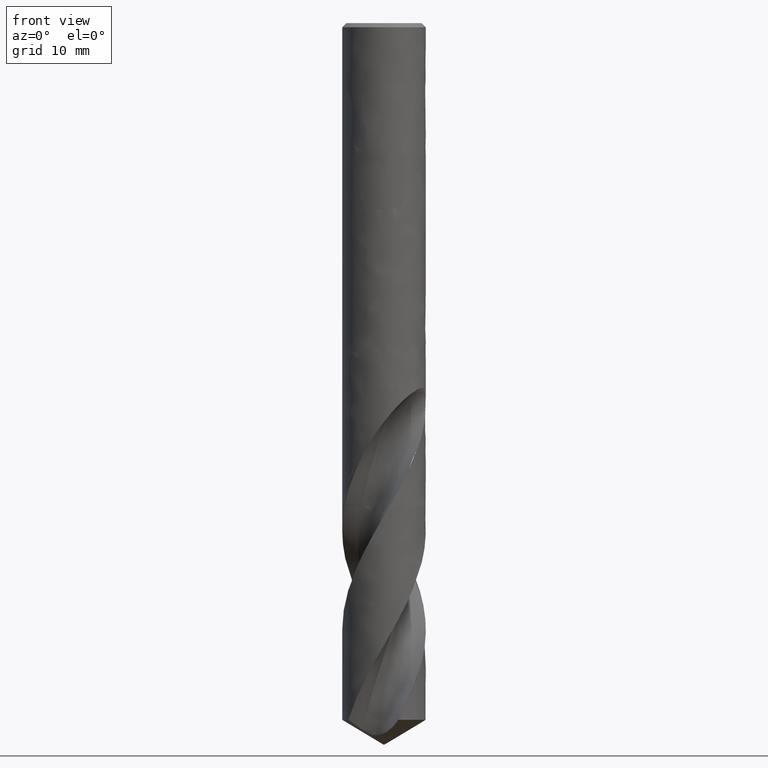
[diagram: clean part render]
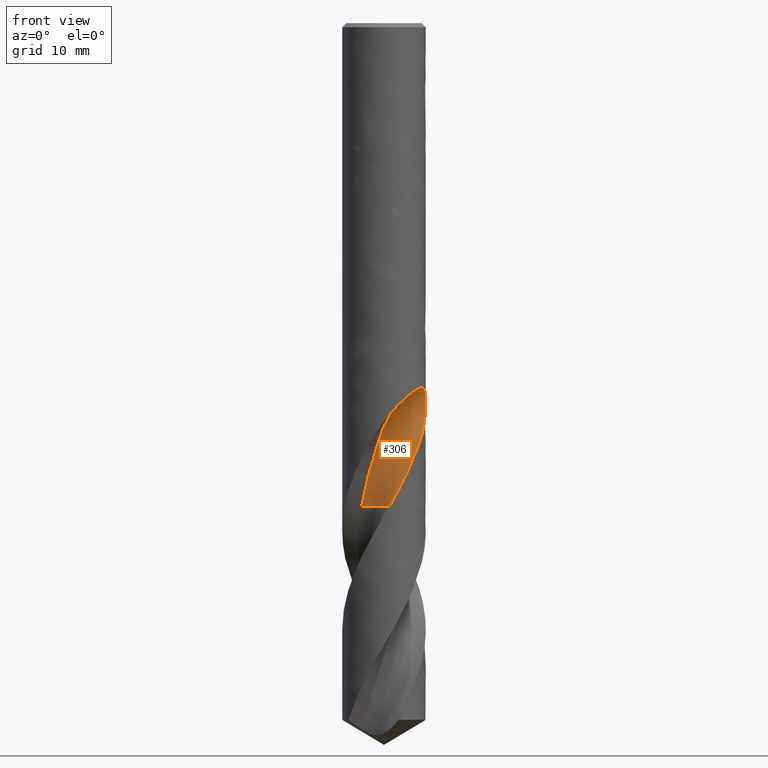
[diagram: same view with one face highlighted and labeled with its STEP entity id]
A machine part, front view. The second image highlights one B-rep face of the part: STEP entity #306.
In plain terms, the highlighted face is a freeform B-spline surface patch.
Its self-contained STEP definition (entity closure, byte-faithful):
#131 = VERTEX_POINT('', #132);
#132 = CARTESIAN_POINT('', (-2.94247372623599, -1.49485175941623, -63.6));
#138 = EDGE_CURVE('', #131, #139, #141, .T.);
#139 = VERTEX_POINT('', #140);
#140 = CARTESIAN_POINT('', (1.00198090854297, -5.40796026787507, -51.2463945700336));
#141 = B_SPLINE_CURVE_WITH_KNOTS('', 3, (#142, #143, #144, #145, #146, #147, #148, #149, #150, #151, #152, #153, #154, #155, #156, #157), .UNSPECIFIED., .F., .U., (4, 1, 1, 1, 1, 1, 1, 1, 1, 1, 1, 1, 1, 4), (31.45, 31.7076086956522, 32.7304347826087, 33.7532608695652, 34.7760869565217, 35.7989130434783, 36.8217391304348, 37.8445652173913, 38.8673913043478, 39.8902173913044, 40.9130434782609, 41.9358695652174, 42.9586956521739, 43.8036054299664), .UNSPECIFIED.);
#142 = CARTESIAN_POINT('', (-2.94247372623599, -1.49485175941623, -63.6));
#143 = CARTESIAN_POINT('', (-2.92979356234915, -1.52144610165644, -63.5141304347826));
#144 = CARTESIAN_POINT('', (-2.8649756753552, -1.65282388224739, -63.0873188405797));
#145 = CARTESIAN_POINT('', (-2.73240932305411, -1.88140311255326, -62.3195652173913));
#146 = CARTESIAN_POINT('', (-2.52707689249013, -2.16912555194927, -61.2967391304348));
#147 = CARTESIAN_POINT('', (-2.2815081506607, -2.42509952900524, -60.2739130434783));
#148 = CARTESIAN_POINT('', (-1.99506502155739, -2.63293704556522, -59.2510869565217));
#149 = CARTESIAN_POINT('', (-1.67933541228516, -2.79157488667388, -58.2282608695652));
#150 = CARTESIAN_POINT('', (-1.34276176188314, -2.88255019695271, -57.2054347826087));
#151 = CARTESIAN_POINT('', (-1.05916568438463, -3.07780527698942, -56.1826086956522));
#152 = CARTESIAN_POINT('', (-0.776234863210597, -3.37141145762359, -55.1597826086956));
#153 = CARTESIAN_POINT('', (-0.458797629931382, -3.77217049912973, -54.1369565217391));
#154 = CARTESIAN_POINT('', (-0.0658591406220405, -4.27395049911726, -53.1141304347826));
#155 = CARTESIAN_POINT('', (0.411841204599818, -4.82931074111829, -52.1506097842141));
#156 = CARTESIAN_POINT('', (0.804278153033331, -5.22456242433116, -51.5280311626311));
#157 = CARTESIAN_POINT('', (1.00198090854297, -5.40796026787507, -51.2463945700336));
#306 = ADVANCED_FACE('', (#307), #649, .T.);
#307 = FACE_OUTER_BOUND('', #308, .T.);
#308 = EDGE_LOOP('', (#309, #384, #429, #441, #576, #584, #648));
#309 = ORIENTED_EDGE('', *, *, #310, .T.);
#310 = EDGE_CURVE('', #131, #311, #313, .T.);
#311 = VERTEX_POINT('', #312);
#312 = CARTESIAN_POINT('', (0.714456293765341, -5.45339822535445, -63.6));
#313 = B_SPLINE_CURVE_WITH_KNOTS('', 3, (#314, #315, #316, #317, #318, #319, #320, #321, #322, #323, #324, #325, #326, #327, #328, #329, #330, #331, #332, #333, #334, #335, #336, #337, #338, #339, #340, #341, #342, #343, #344, #345, #346, #347, #348, #349, #350, #351, #352, #353, #354, #355, #356, #357, #358, #359, #360, #361, #362, #363, #364, #365, #366, #367, #368, #369, #370, #371, #372, #373, #374, #375, #376, #377, #378, #379, #380, #381, #382, #383), .UNSPECIFIED., .F., .U., (4, 3, 3, 3, 3, 3, 3, 3, 3, 3, 3, 3, 3, 3, 3, 3, 3, 3, 3, 3, 3, 3, 3, 4), (0., 0.297207822818698, 0.594099062556648, 0.890680923475543, 1.18695915059316, 1.4829381332927, 1.77862098314817, 2.07400958893483, 2.36910465088771, 2.66390569549937, 2.95841107145926, 3.15485063121478, 3.19376106299035, 3.49094778241057, 3.78781844060555, 4.08438014197337, 4.38063853935954, 4.67659793585614, 4.97226136104411, 5.26763062458236, 5.56270634915278, 5.85748798400461, 6.15197379965707, 6.29654215891658), .UNSPECIFIED.);
#314 = CARTESIAN_POINT('', (-2.94247372623599, -1.49485175941623, -63.6));
#315 = CARTESIAN_POINT('', (-2.84420379591717, -1.48229222518546, -63.6));
#316 = CARTESIAN_POINT('', (-2.74526944946921, -1.47414386021349, -63.6));
#317 = CARTESIAN_POINT('', (-2.64626884204198, -1.47045592935774, -63.6));
#318 = CARTESIAN_POINT('', (-2.54737368916502, -1.46677192685253, -63.6));
#319 = CARTESIAN_POINT('', (-2.44821342986921, -1.46753142941059, -63.6));
#320 = CARTESIAN_POINT('', (-2.34938631056536, -1.47272985485674, -63.6));
#321 = CARTESIAN_POINT('', (-2.25066217516057, -1.47792286322582, -63.6));
#322 = CARTESIAN_POINT('', (-2.15207225713865, -1.48755595647283, -63.6));
#323 = CARTESIAN_POINT('', (-2.05421012483209, -1.5015711378045, -63.6));
#324 = CARTESIAN_POINT('', (-1.9564481815632, -1.51557197071051, -63.6));
#325 = CARTESIAN_POINT('', (-1.8592166392032, -1.53397396020159, -63.6));
#326 = CARTESIAN_POINT('', (-1.7630996916715, -1.55666654205029, -63.6));
#327 = CARTESIAN_POINT('', (-1.66707982336262, -1.57933620413026, -63.6));
#328 = CARTESIAN_POINT('', (-1.57198028251203, -1.60633311142021, -63.6));
#329 = CARTESIAN_POINT('', (-1.47837130148837, -1.63749538605774, -63.6));
#330 = CARTESIAN_POINT('', (-1.38485597810732, -1.66862648222126, -63.6));
#331 = CARTESIAN_POINT('', (-1.29264159763866, -1.70397672695759, -63.6));
#332 = CARTESIAN_POINT('', (-1.20227998832609, -1.7433345777354, -63.6));
#333 = CARTESIAN_POINT('', (-1.11200830092682, -1.78265326217619, -63.6));
#334 = CARTESIAN_POINT('', (-1.02340589357005, -1.82604987729375, -63.6));
#335 = CARTESIAN_POINT('', (-0.937001926603489, -1.87326524539045, -63.6));
#336 = CARTESIAN_POINT('', (-0.850683823990601, -1.92043369299025, -63.6));
#337 = CARTESIAN_POINT('', (-0.76638820340437, -1.97150705351481, -63.6));
#338 = CARTESIAN_POINT('', (-0.684617505157917, -2.02618090646072, -63.6));
#339 = CARTESIAN_POINT('', (-0.602928278973817, -2.08080028522881, -63.6));
#340 = CARTESIAN_POINT('', (-0.523596877790301, -2.13912132726374, -63.6));
#341 = CARTESIAN_POINT('', (-0.447095212531325, -2.20079710390395, -63.6));
#342 = CARTESIAN_POINT('', (-0.370670274084002, -2.2624110232541, -63.6));
#343 = CARTESIAN_POINT('', (-0.296918075111338, -2.3274949260005, -63.6));
#344 = CARTESIAN_POINT('', (-0.226276459803447, -2.3956624289697, -63.6));
#345 = CARTESIAN_POINT('', (-0.179157429238141, -2.44113118901952, -63.6));
#346 = CARTESIAN_POINT('', (-0.133368982838147, -2.4880203718166, -63.6));
#347 = CARTESIAN_POINT('', (-0.0890321608590752, -2.53620602734476, -63.6));
#348 = CARTESIAN_POINT('', (-0.0802499945331596, -2.54575056442437, -63.6));
#349 = CARTESIAN_POINT('', (-0.0715238168780199, -2.55534692293956, -63.6));
#350 = CARTESIAN_POINT('', (-0.0628545335177949, -2.56499410695669, -63.6));
#351 = CARTESIAN_POINT('', (0.00335896666666497, -2.63867653192255, -63.6));
#352 = CARTESIAN_POINT('', (0.0663224471391343, -2.71541371885908, -63.6));
#353 = CARTESIAN_POINT('', (0.125655285888055, -2.79474178199895, -63.6));
#354 = CARTESIAN_POINT('', (0.184925023534246, -2.87398547890307, -63.6));
#355 = CARTESIAN_POINT('', (0.240691093283978, -2.95597395694635, -63.6));
#356 = CARTESIAN_POINT('', (0.292617097946261, -3.04021263772598, -63.6));
#357 = CARTESIAN_POINT('', (0.344489062597499, -3.12436365030797, -63.6));
#358 = CARTESIAN_POINT('', (0.392633105871104, -3.21092911802732, -63.6));
#359 = CARTESIAN_POINT('', (0.436759412123278, -3.29938793744004, -63.6));
#360 = CARTESIAN_POINT('', (0.480840588865064, -3.387756286937, -63.6));
#361 = CARTESIAN_POINT('', (0.521000575666708, -3.47819115560836, -63.6));
#362 = CARTESIAN_POINT('', (0.556998112502401, -3.57014925844612, -63.6));
#363 = CARTESIAN_POINT('', (0.592959318568635, -3.66201455191614, -63.6));
#364 = CARTESIAN_POINT('', (0.624838391865865, -3.7555836804739, -63.6));
#365 = CARTESIAN_POINT('', (0.652444205527418, -3.85029566249389, -63.6));
#366 = CARTESIAN_POINT('', (0.680022412264196, -3.94491292871977, -63.6));
#367 = CARTESIAN_POINT('', (0.703390949965795, -4.04085956332601, -63.6));
#368 = CARTESIAN_POINT('', (0.722409995240997, -4.1375614788794, -63.6));
#369 = CARTESIAN_POINT('', (0.741410118075148, -4.23416718369928, -63.6));
#370 = CARTESIAN_POINT('', (0.756107254633792, -4.33171905299035, -63.6));
#371 = CARTESIAN_POINT('', (0.766413640654389, -4.42963455369709, -63.6));
#372 = CARTESIAN_POINT('', (0.776709784153884, -4.52745274564982, -63.6));
#373 = CARTESIAN_POINT('', (0.782644381114748, -4.62582826196331, -63.6));
#374 = CARTESIAN_POINT('', (0.784182063263498, -4.72417481646051, -63.6));
#375 = CARTESIAN_POINT('', (0.785718212868319, -4.82242335303171, -63.6));
#376 = CARTESIAN_POINT('', (0.782869272191484, -4.92083786951823, -63.6));
#377 = CARTESIAN_POINT('', (0.77565218621871, -5.0188330141125, -63.6));
#378 = CARTESIAN_POINT('', (0.768442342734415, -5.11672981864149, -63.6));
#379 = CARTESIAN_POINT('', (0.756858861232031, -5.2144018921438, -63.6));
#380 = CARTESIAN_POINT('', (0.740970500168417, -5.3112694623764, -63.6));
#381 = CARTESIAN_POINT('', (0.733170619263457, -5.35882348688163, -63.6));
#382 = CARTESIAN_POINT('', (0.724326816075293, -5.40623048025141, -63.6));
#383 = CARTESIAN_POINT('', (0.714456293765342, -5.45339822535445, -63.6));
#384 = ORIENTED_EDGE('', *, *, #385, .F.);
#385 = EDGE_CURVE('', #386, #311, #388, .T.);
#386 = VERTEX_POINT('', #387);
#387 = CARTESIAN_POINT('', (3.26968593350629, -4.42257322112716, -58.6984018721668));
#388 = B_SPLINE_CURVE_WITH_KNOTS('', 3, (#389, #390, #391, #392, #393, #394, #395, #396, #397, #398, #399, #400, #401, #402, #403, #404, #405, #406, #407, #408, #409, #410, #411, #412, #413, #414, #415, #416, #417, #418, #419, #420, #421, #422, #423, #424, #425, #426, #427, #428), .UNSPECIFIED., .F., .U., (4, 3, 3, 3, 3, 3, 3, 3, 3, 3, 3, 3, 3, 4), (0., 0.443317857167582, 0.738840661161417, 1.40347792133523, 1.84666160747555, 2.28983893802883, 2.73298901117867, 3.02845590968989, 3.47155646753723, 3.91465925584381, 4.21010987210681, 4.87443788406549, 5.31745490321451, 5.63758894589785), .UNSPECIFIED.);
#389 = CARTESIAN_POINT('', (3.2696859335063, -4.42257322112715, -58.6984018721668));
#390 = CARTESIAN_POINT('', (3.21297887948116, -4.46449774054287, -58.8282609944424));
#391 = CARTESIAN_POINT('', (3.15513228414397, -4.50557525465096, -58.9579036059473));
#392 = CARTESIAN_POINT('', (3.0962944852117, -4.54565291909182, -59.0873973941087));
#393 = CARTESIAN_POINT('', (3.05707226341269, -4.57236933392058, -59.173720033178));
#394 = CARTESIAN_POINT('', (3.01741126853386, -4.59864107780535, -59.2599832005708));
#395 = CARTESIAN_POINT('', (2.9773468083574, -4.62443574750087, -59.3461993334353));
#396 = CARTESIAN_POINT('', (2.88724095973199, -4.68244852472763, -59.5401013049767));
#397 = CARTESIAN_POINT('', (2.79505652395099, -4.73807475248177, -59.7337785171634));
#398 = CARTESIAN_POINT('', (2.70085702004125, -4.7911764064052, -59.9271413591457));
#399 = CARTESIAN_POINT('', (2.63804428612322, -4.82658487375441, -60.0560767381972));
#400 = CARTESIAN_POINT('', (2.57432631663658, -4.8608762020052, -60.1848863160772));
#401 = CARTESIAN_POINT('', (2.50970895255338, -4.89401276801294, -60.3135334898728));
#402 = CARTESIAN_POINT('', (2.44509251513173, -4.92714885881743, -60.4421788187712));
#403 = CARTESIAN_POINT('', (2.37957461866043, -4.95912991058116, -60.5706773707301));
#404 = CARTESIAN_POINT('', (2.31324698963694, -4.98987859220401, -60.6990443032043));
#405 = CARTESIAN_POINT('', (2.24692344006161, -5.02062538264433, -60.8274033405335));
#406 = CARTESIAN_POINT('', (2.17978357721891, -5.0501428334012, -60.9556436187666));
#407 = CARTESIAN_POINT('', (2.11193815760748, -5.07835772848286, -61.0837886130037));
#408 = CARTESIAN_POINT('', (2.06670274656874, -5.09716979249165, -61.1692283010485));
#409 = CARTESIAN_POINT('', (2.02115196427779, -5.1154038118853, -61.2546308384422));
#410 = CARTESIAN_POINT('', (1.9753221038498, -5.13304028681271, -61.3400044590906));
#411 = CARTESIAN_POINT('', (1.90659279161879, -5.1594890427247, -61.4680360562858));
#412 = CARTESIAN_POINT('', (1.83722344849559, -5.18459844894434, -61.5960094145514));
#413 = CARTESIAN_POINT('', (1.76730748858407, -5.20832259377188, -61.7239323148908));
#414 = CARTESIAN_POINT('', (1.69739117673279, -5.23204685802093, -61.8518558591627));
#415 = CARTESIAN_POINT('', (1.62692108313725, -5.25438781455223, -61.979741946621));
#416 = CARTESIAN_POINT('', (1.55602527386245, -5.27529955046168, -62.1076170735404));
#417 = CARTESIAN_POINT('', (1.50875359989995, -5.28924300878473, -62.1928812290593));
#418 = CARTESIAN_POINT('', (1.46129150016214, -5.30255165473636, -62.2781461935563));
#419 = CARTESIAN_POINT('', (1.41368305783166, -5.31521403256724, -62.3634228481114));
#420 = CARTESIAN_POINT('', (1.30663429873311, -5.34368570203761, -62.5551695132686));
#421 = CARTESIAN_POINT('', (1.19881517039771, -5.36889917547295, -62.746998916276));
#422 = CARTESIAN_POINT('', (1.0903936142929, -5.39082941354196, -62.9388339683805));
#423 = CARTESIAN_POINT('', (1.01809108642654, -5.40545391909294, -63.0667620271433));
#424 = CARTESIAN_POINT('', (0.945510593224317, -5.41862061771148, -63.1947082377305));
#425 = CARTESIAN_POINT('', (0.872690757580928, -5.43032327229538, -63.3226435312576));
#426 = CARTESIAN_POINT('', (0.820069509718185, -5.43877987319361, -63.4150924461941));
#427 = CARTESIAN_POINT('', (0.767309871499141, -5.44647381424426, -63.5075561600223));
#428 = CARTESIAN_POINT('', (0.714456293765341, -5.45339822535445, -63.6));
#429 = ORIENTED_EDGE('', *, *, #430, .T.);
#430 = EDGE_CURVE('', #386, #431, #433, .T.);
#431 = VERTEX_POINT('', #432);
#432 = CARTESIAN_POINT('', (4.30389661225973, -3.42439395382296, -56.1760126312081));
#433 = B_SPLINE_CURVE_WITH_KNOTS('', 3, (#434, #435, #436, #437, #438, #439, #440), .UNSPECIFIED., .F., .U., (4, 1, 1, 1, 4), (36.3515981278332, 36.8217391304348, 37.8445652173913, 38.8673913043478, 38.8739873687919), .UNSPECIFIED.);
#434 = CARTESIAN_POINT('', (3.2696859335063, -4.42257322112715, -58.6984018721668));
#435 = CARTESIAN_POINT('', (3.3343777346951, -4.35932626646409, -58.5416882046329));
#436 = CARTESIAN_POINT('', (3.53089699525729, -4.15036266013409, -58.0440325081136));
#437 = CARTESIAN_POINT('', (3.80499629325594, -3.75560263517232, -57.2054347826087));
#438 = CARTESIAN_POINT('', (4.11899034126216, -3.52910752632087, -56.5213520364897));
#439 = CARTESIAN_POINT('', (4.30271828965787, -3.42506025057913, -56.1782113193561));
#440 = CARTESIAN_POINT('', (4.30389661225973, -3.42439395382296, -56.1760126312081));
#441 = ORIENTED_EDGE('', *, *, #442, .F.);
#442 = EDGE_CURVE('', #443, #431, #445, .T.);
#443 = VERTEX_POINT('', #444);
#444 = CARTESIAN_POINT('', (4.98766822671617, -2.31800898622199, -48.));
#445 = B_SPLINE_CURVE_WITH_KNOTS('', 3, (#446, #447, #448, #449, #450, #451, #452, #453, #454, #455, #456, #457, #458, #459, #460, #461, #462, #463, #464, #465, #466, #467, #468, #469, #470, #471, #472, #473, #474, #475, #476, #477, #478, #479, #480, #481, #482, #483, #484, #485, #486, #487, #488, #489, #490, #491, #492, #493, #494, #495, #496, #497, #498, #499, #500, #501, #502, #503, #504, #505, #506, #507, #508, #509, #510, #511, #512, #513, #514, #515, #516, #517, #518, #519, #520, #521, #522, #523, #524, #525, #526, #527, #528, #529, #530, #531, #532, #533, #534, #535, #536, #537, #538, #539, #540, #541, #542, #543, #544, #545, #546, #547, #548, #549, #550, #551, #552, #553, #554, #555, #556, #557, #558, #559, #560, #561, #562, #563, #564, #565, #566, #567, #568, #569, #570, #571, #572, #573, #574, #575), .UNSPECIFIED., .F., .U., (4, 3, 3, 3, 3, 3, 3, 3, 3, 3, 3, 3, 3, 3, 3, 3, 3, 3, 3, 3, 3, 3, 3, 3, 3, 3, 3, 3, 3, 3, 3, 3, 3, 3, 3, 3, 3, 3, 3, 3, 3, 3, 3, 4), (0., 0.196813349378647, 0.393319037534787, 0.589478023454175, 0.785272288722808, 0.915871589592016, 1.04638235164352, 1.17682975977045, 1.30724577177092, 1.43766557714755, 1.56812312998406, 1.69864707418926, 1.82925817473226, 1.95996864291906, 2.15585770533576, 2.35207119046643, 2.41039916528032, 2.46873767087495, 2.66547455691193, 2.86239802480601, 3.05947599986843, 3.25667882376269, 3.55287490736679, 3.84930506904475, 4.14589167265463, 4.44257657828835, 4.73931774261132, 5.03608098437221, 5.33283837744836, 5.62957272926535, 5.92626973591521, 6.22291603872824, 6.51950012561381, 6.81601701481218, 7.11246205677143, 7.40883080335869, 7.70511993769399, 8.00133407382943, 8.2974750336451, 8.59354385564514, 8.88954157143528, 9.185465023861, 9.4813192495289, 9.98649193661747), .UNSPECIFIED.);
#446 = CARTESIAN_POINT('', (4.98766822672349, -2.31800898620626, -48.));
#447 = CARTESIAN_POINT('', (5.01531761577792, -2.25851569688093, -48.0000603555823));
#448 = CARTESIAN_POINT('', (5.04192878984829, -2.19846028185344, -48.0026734857192));
#449 = CARTESIAN_POINT('', (5.0673435112908, -2.13823051577209, -48.0081881066864));
#450 = CARTESIAN_POINT('', (5.09271850410569, -2.07809490165513, -48.0136941071254));
#451 = CARTESIAN_POINT('', (5.11695816296256, -2.01764556994608, -48.0221088416219));
#452 = CARTESIAN_POINT('', (5.13989734438846, -1.9574103527744, -48.0337712150598));
#453 = CARTESIAN_POINT('', (5.16279605337012, -1.89728141081908, -48.0454130121418));
#454 = CARTESIAN_POINT('', (5.1844626572334, -1.83719390543934, -48.0603300812242));
#455 = CARTESIAN_POINT('', (5.20473823275629, -1.77783574283028, -48.0787930588249));
#456 = CARTESIAN_POINT('', (5.22497610966922, -1.71858794553329, -48.0972217079997));
#457 = CARTESIAN_POINT('', (5.24389650648687, -1.65986312475615, -48.1192547780854));
#458 = CARTESIAN_POINT('', (5.26136897434615, -1.60249696280141, -48.1450098666387));
#459 = CARTESIAN_POINT('', (5.27302351429781, -1.56423240671465, -48.1621891060525));
#460 = CARTESIAN_POINT('', (5.28406135553872, -1.52648911467947, -48.1810581479858));
#461 = CARTESIAN_POINT('', (5.29445704325737, -1.48953839061055, -48.2015935926724));
#462 = CARTESIAN_POINT('', (5.3048456832974, -1.45261271700822, -48.2221151155081));
#463 = CARTESIAN_POINT('', (5.31461355277586, -1.41640615644454, -48.2443422042108));
#464 = CARTESIAN_POINT('', (5.3237498830556, -1.38119049470579, -48.2681948088837));
#465 = CARTESIAN_POINT('', (5.33288177828056, -1.34599192772875, -48.2920358347712));
#466 = CARTESIAN_POINT('', (5.34140188528457, -1.31171066679055, -48.3175508088867));
#467 = CARTESIAN_POINT('', (5.3493161149386, -1.27859966465607, -48.3446017173675));
#468 = CARTESIAN_POINT('', (5.35722843979314, -1.24549663168882, -48.3716461152265));
#469 = CARTESIAN_POINT('', (5.36455224914023, -1.21349353579079, -48.4002828760602));
#470 = CARTESIAN_POINT('', (5.37130990857079, -1.18280592917436, -48.4303231818337));
#471 = CARTESIAN_POINT('', (5.3780677645596, -1.15211742995561, -48.4603643613817));
#472 = CARTESIAN_POINT('', (5.38427395080222, -1.12268052416054, -48.491871186722));
#473 = CARTESIAN_POINT('', (5.38996470923729, -1.09465996235255, -48.524618529437));
#474 = CARTESIAN_POINT('', (5.395657114751, -1.06663129054142, -48.5573753502294));
#475 = CARTESIAN_POINT('', (5.400845544894, -1.03996380048612, -48.5914374789282));
#476 = CARTESIAN_POINT('', (5.40557582702784, -1.01476597216001, -48.6265617313905));
#477 = CARTESIAN_POINT('', (5.41030851645736, -0.989555320365472, -48.6617038589942));
#478 = CARTESIAN_POINT('', (5.41459166520575, -0.9657690196615, -48.6979725194482));
#479 = CARTESIAN_POINT('', (5.4184757918176, -0.943461760480195, -48.7351241572847));
#480 = CARTESIAN_POINT('', (5.42236251202447, -0.921139605801911, -48.7723006028353));
#481 = CARTESIAN_POINT('', (5.42585638284543, -0.900260971702178, -48.8104214309284));
#482 = CARTESIAN_POINT('', (5.42900817869192, -0.880834942368959, -48.8492565806579));
#483 = CARTESIAN_POINT('', (5.43216237239377, -0.861394133903222, -48.8881212757883));
#484 = CARTESIAN_POINT('', (5.43497873643208, -0.843379252495395, -48.9277568496976));
#485 = CARTESIAN_POINT('', (5.43750497188384, -0.826764586046245, -48.9679554752029));
#486 = CARTESIAN_POINT('', (5.44129091115064, -0.801865039145083, -49.0281990897344));
#487 = CARTESIAN_POINT('', (5.44443510478291, -0.780057947948136, -49.0898379743699));
#488 = CARTESIAN_POINT('', (5.44707552296234, -0.761162431511487, -49.1522847638332));
#489 = CARTESIAN_POINT('', (5.44972031408441, -0.742235621164657, -49.2148349748793));
#490 = CARTESIAN_POINT('', (5.45186572306683, -0.726183948214075, -49.2783343396484));
#491 = CARTESIAN_POINT('', (5.45361879454307, -0.712770681079536, -49.3423246434224));
#492 = CARTESIAN_POINT('', (5.45413992645632, -0.708783347043478, -49.3613469079949));
#493 = CARTESIAN_POINT('', (5.45462639254378, -0.705027370400166, -49.380420016623));
#494 = CARTESIAN_POINT('', (5.45508048144452, -0.701496215929172, -49.3995339307179));
#495 = CARTESIAN_POINT('', (5.45553465232841, -0.697964423928525, -49.4186512957202));
#496 = CARTESIAN_POINT('', (5.45595649781779, -0.69465703236237, -49.4378121796365));
#497 = CARTESIAN_POINT('', (5.45634808496372, -0.691567477338751, -49.4570073555883));
#498 = CARTESIAN_POINT('', (5.45766864734215, -0.681148468000215, -49.5217398869618));
#499 = CARTESIAN_POINT('', (5.45864798933972, -0.673197923765783, -49.5869151821652));
#500 = CARTESIAN_POINT('', (5.45934846833509, -0.667468577003654, -49.6522396352702));
#501 = CARTESIAN_POINT('', (5.46004961165262, -0.661733796628234, -49.7176260409558));
#502 = CARTESIAN_POINT('', (5.4604718683889, -0.658216795879932, -49.7832403019902));
#503 = CARTESIAN_POINT('', (5.46065590508146, -0.656686444430616, -49.8488633582381));
#504 = CARTESIAN_POINT('', (5.46084008617016, -0.655154892259661, -49.9145379026744));
#505 = CARTESIAN_POINT('', (5.46078555153449, -0.655611337599086, -49.9802837831214));
#506 = CARTESIAN_POINT('', (5.46051634408432, -0.657845921160884, -50.0459378730571));
#507 = CARTESIAN_POINT('', (5.46024696609131, -0.660081920330629, -50.1116335548371));
#508 = CARTESIAN_POINT('', (5.45976223620589, -0.664099611353113, -50.17728745238));
#509 = CARTESIAN_POINT('', (5.45907375123899, -0.669711713005183, -50.2427781018257));
#510 = CARTESIAN_POINT('', (5.45803965574892, -0.678141016892953, -50.3411442078248));
#511 = CARTESIAN_POINT('', (5.4565458756334, -0.69017304924843, -50.4392464836001));
#512 = CARTESIAN_POINT('', (5.45459385387985, -0.705270082462125, -50.5367979188851));
#513 = CARTESIAN_POINT('', (5.45264028948101, -0.720379046571101, -50.634426447195));
#514 = CARTESIAN_POINT('', (5.45022476857963, -0.738574692237408, -50.7316066554979));
#515 = CARTESIAN_POINT('', (5.44731992947395, -0.759411341735077, -50.828151063403));
#516 = CARTESIAN_POINT('', (5.44441355733048, -0.780258987838772, -50.9247464229171));
#517 = CARTESIAN_POINT('', (5.44101440442663, -0.803768021324674, -51.0207831781062));
#518 = CARTESIAN_POINT('', (5.43707899788044, -0.82956131226533, -51.1161401576332));
#519 = CARTESIAN_POINT('', (5.43314228696507, -0.855363152252606, -51.2115287427148));
#520 = CARTESIAN_POINT('', (5.42866620562666, -0.883467049388635, -51.306297142658));
#521 = CARTESIAN_POINT('', (5.42359864718877, -0.913552250400654, -51.4003684737583));
#522 = CARTESIAN_POINT('', (5.41853012781829, -0.943643156300056, -51.4944576430757));
#523 = CARTESIAN_POINT('', (5.41286711275432, -0.975731752602277, -51.587896287238));
#524 = CARTESIAN_POINT('', (5.4065543055453, -1.00953976701742, -51.68063835383));
#525 = CARTESIAN_POINT('', (5.40024102866566, -1.0433502967369, -51.773387320399));
#526 = CARTESIAN_POINT('', (5.39327512231328, -1.07889457824181, -51.8654768205996));
#527 = CARTESIAN_POINT('', (5.38560241771511, -1.11592410060101, -51.9568842834376));
#528 = CARTESIAN_POINT('', (5.37792986433252, -1.15295289317305, -52.0482899447944));
#529 = CARTESIAN_POINT('', (5.36954806896283, -1.19147848376645, -52.1390439879805));
#530 = CARTESIAN_POINT('', (5.3604065521831, -1.23127640898093, -52.2291414480024));
#531 = CARTESIAN_POINT('', (5.351265745182, -1.27107124414834, -52.3192319125494));
#532 = CARTESIAN_POINT('', (5.34136264205164, -1.31214990049282, -52.4086901548644));
#533 = CARTESIAN_POINT('', (5.33065132013189, -1.35431034226885, -52.4975228053534));
#534 = CARTESIAN_POINT('', (5.31994134627348, -1.39646547799003, -52.5863442759093));
#535 = CARTESIAN_POINT('', (5.30842081055702, -1.43971203236194, -52.6745605481974));
#536 = CARTESIAN_POINT('', (5.29605075148562, -1.48386200089116, -52.7621891654231));
#537 = CARTESIAN_POINT('', (5.2836828063872, -1.52800442444098, -52.8498028074147));
#538 = CARTESIAN_POINT('', (5.27046313478672, -1.57305870752784, -52.9368459170397));
#539 = CARTESIAN_POINT('', (5.25636156035939, -1.61884623938661, -53.0233463066967));
#540 = CARTESIAN_POINT('', (5.24226294346945, -1.66462416818026, -53.1098285545399));
#541 = CARTESIAN_POINT('', (5.22728072616109, -1.71114173024593, -53.1957832127665));
#542 = CARTESIAN_POINT('', (5.21139360745267, -1.75823111910847, -53.2812452386643));
#543 = CARTESIAN_POINT('', (5.19551008832251, -1.80530983882805, -53.3666879012492));
#544 = CARTESIAN_POINT('', (5.17871963839108, -1.85296737019656, -53.4516501067209));
#545 = CARTESIAN_POINT('', (5.1610100505162, -1.90104583281696, -53.53617213077));
#546 = CARTESIAN_POINT('', (5.14330475374594, -1.94911264583181, -53.6206736747914));
#547 = CARTESIAN_POINT('', (5.12467848487865, -1.99760630877195, -53.7047457478779));
#548 = CARTESIAN_POINT('', (5.10512971602611, -2.04637498580958, -53.7884348676336));
#549 = CARTESIAN_POINT('', (5.08558597839481, -2.09513111136606, -53.872102448515));
#550 = CARTESIAN_POINT('', (5.06511798754287, -2.14416756643378, -53.9553964371361));
#551 = CARTESIAN_POINT('', (5.04373615308984, -2.19333664037568, -54.0383699321422));
#552 = CARTESIAN_POINT('', (5.02236006234633, -2.24249250624234, -54.1213211383379));
#553 = CARTESIAN_POINT('', (5.00006913416117, -2.29178437786351, -54.2039611690929));
#554 = CARTESIAN_POINT('', (4.97688399181681, -2.34107362805991, -54.286345378766));
#555 = CARTESIAN_POINT('', (4.9537047182126, -2.39035040191273, -54.3687087349324));
#556 = CARTESIAN_POINT('', (4.92962921620429, -2.43962981590818, -54.4508231114058));
#557 = CARTESIAN_POINT('', (4.9046886123803, -2.4887807487979, -54.5327459634199));
#558 = CARTESIAN_POINT('', (4.87975416984769, -2.53791953951091, -54.6146485773289));
#559 = CARTESIAN_POINT('', (4.8539529361621, -2.58693399892058, -54.6963664677733));
#560 = CARTESIAN_POINT('', (4.8273288702875, -2.63569648823399, -54.777961590756));
#561 = CARTESIAN_POINT('', (4.80071128984455, -2.68444709935445, -54.8595368377513));
#562 = CARTESIAN_POINT('', (4.77326914550324, -2.73294966499898, -54.9409956919059));
#563 = CARTESIAN_POINT('', (4.74506032540738, -2.78107937827118, -55.0224047317279));
#564 = CARTESIAN_POINT('', (4.71685828016295, -2.82919753233404, -55.1037942197166));
#565 = CARTESIAN_POINT('', (4.68788810907416, -2.87694605057344, -55.1851404871137));
#566 = CARTESIAN_POINT('', (4.65822138420258, -2.92420476980643, -55.2665128396254));
#567 = CARTESIAN_POINT('', (4.62856210246547, -2.97145163221991, -55.3478647764909));
#568 = CARTESIAN_POINT('', (4.5982042574281, -3.01821278115105, -55.4292486494558));
#569 = CARTESIAN_POINT('', (4.56722905077042, -3.06437902319544, -55.5107304959055));
#570 = CARTESIAN_POINT('', (4.53626109028775, -3.11053446535483, -55.5921932809256));
#571 = CARTESIAN_POINT('', (4.50467373758973, -3.15609878775706, -55.6737602913902));
#572 = CARTESIAN_POINT('', (4.47255815985676, -3.20097227521593, -55.7554945225958));
#573 = CARTESIAN_POINT('', (4.4177206375461, -3.27759399723953, -55.8950561635088));
#574 = CARTESIAN_POINT('', (4.36132913454786, -3.3522107758818, -56.0351347125718));
#575 = CARTESIAN_POINT('', (4.30389661225973, -3.42439395382296, -56.1760126312081));
#576 = ORIENTED_EDGE('', *, *, #577, .T.);
#577 = EDGE_CURVE('', #443, #578, #580, .T.);
#578 = VERTEX_POINT('', #579);
#579 = CARTESIAN_POINT('', (4.98570207796183, -2.32223486964757, -48.));
#580 = LINE('', #581, #582);
#581 = CARTESIAN_POINT('', (4.98766822671618, -2.31800898622199, -48.));
#582 = VECTOR('', #583, 0.00466088314065514);
#583 = DIRECTION('', (-0.00196614875434697, -0.00422588342558372, 0.));
#584 = ORIENTED_EDGE('', *, *, #585, .T.);
#585 = EDGE_CURVE('', #578, #139, #586, .T.);
#586 = B_SPLINE_CURVE_WITH_KNOTS('', 3, (#587, #588, #589, #590, #591, #592, #593, #594, #595, #596, #597, #598, #599, #600, #601, #602, #603, #604, #605, #606, #607, #608, #609, #610, #611, #612, #613, #614, #615, #616, #617, #618, #619, #620, #621, #622, #623, #624, #625, #626, #627, #628, #629, #630, #631, #632, #633, #634, #635, #636, #637, #638, #639, #640, #641, #642, #643, #644, #645, #646, #647), .UNSPECIFIED., .F., .U., (4, 3, 3, 3, 3, 3, 3, 3, 3, 3, 3, 3, 3, 3, 3, 3, 3, 3, 3, 3, 4), (0., 0.197560279247812, 0.394795638394897, 0.591768598155946, 0.788531769716223, 0.985127895142678, 1.18159111785242, 1.47563840284195, 1.76941008022907, 2.06298594293451, 2.35642333828367, 2.64976425515665, 2.94304007796123, 3.23627479085745, 3.67436075193501, 4.11243112866399, 4.55054433578865, 4.98875012194522, 5.42710746772794, 5.86565701531409, 6.31760056306195), .UNSPECIFIED.);
#587 = CARTESIAN_POINT('', (4.98570207795987, -2.32223486965178, -48.));
#588 = CARTESIAN_POINT('', (4.95789715822759, -2.38193040170083, -48.0000605209291));
#589 = CARTESIAN_POINT('', (4.92899764155768, -2.44116679841367, -48.0026831521528));
#590 = CARTESIAN_POINT('', (4.89914975991691, -2.49966630371057, -48.0075396542166));
#591 = CARTESIAN_POINT('', (4.8693509679856, -2.55806959702992, -48.0123881689706));
#592 = CARTESIAN_POINT('', (4.83856280897021, -2.61582700550876, -48.0194696413332));
#593 = CARTESIAN_POINT('', (4.80691616708254, -2.67274334021066, -48.028494145074));
#594 = CARTESIAN_POINT('', (4.77531162748038, -2.72958395415262, -48.037506642731));
#595 = CARTESIAN_POINT('', (4.74281264734294, -2.78565591089337, -48.0484677362472));
#596 = CARTESIAN_POINT('', (4.70953596367, -2.84082224134121, -48.0611273468033));
#597 = CARTESIAN_POINT('', (4.67629472169222, -2.89592981628666, -48.0737734741029));
#598 = CARTESIAN_POINT('', (4.6422440703713, -2.9501899225062, -48.0881272752831));
#599 = CARTESIAN_POINT('', (4.60748846321927, -3.00350629453332, -48.1039753592566));
#600 = CARTESIAN_POINT('', (4.57276236255343, -3.05677740253189, -48.1198099886739));
#601 = CARTESIAN_POINT('', (4.53730314182484, -3.10915202446277, -48.1371499277827));
#602 = CARTESIAN_POINT('', (4.50120487212861, -3.16056240234723, -48.1558137021691));
#603 = CARTESIAN_POINT('', (4.46513100554867, -3.21193802583929, -48.1744648594894));
#604 = CARTESIAN_POINT('', (4.42839286969635, -3.26238825801154, -48.1944517429142));
#605 = CARTESIAN_POINT('', (4.39107584952897, -3.31186546883883, -48.2156198751698));
#606 = CARTESIAN_POINT('', (4.3352233173717, -3.38591820660804, -48.2473023027112));
#607 = CARTESIAN_POINT('', (4.27801089486443, -3.457873520308, -48.2816640474449));
#608 = CARTESIAN_POINT('', (4.21969579245864, -3.52762914988336, -48.3182781227216));
#609 = CARTESIAN_POINT('', (4.16143534821969, -3.59731939819929, -48.3548578799887));
#610 = CARTESIAN_POINT('', (4.10200622759192, -3.66489665218262, -48.3937295770039));
#611 = CARTESIAN_POINT('', (4.04163717135484, -3.73030413976164, -48.4345526872802));
#612 = CARTESIAN_POINT('', (3.98130835435265, -3.79566802971928, -48.4753485867497));
#613 = CARTESIAN_POINT('', (3.91998128848963, -3.85893025311915, -48.5181344015251));
#614 = CARTESIAN_POINT('', (3.85786251215745, -3.92006337159109, -48.5626350659886));
#615 = CARTESIAN_POINT('', (3.79577303463293, -3.98116765614863, -48.607114741365));
#616 = CARTESIAN_POINT('', (3.73283975259686, -4.04019725100689, -48.6533461070554));
#617 = CARTESIAN_POINT('', (3.66925156392185, -4.09714448862338, -48.7011041715161));
#618 = CARTESIAN_POINT('', (3.60568428223295, -4.15407300271385, -48.7488465337337));
#619 = CARTESIAN_POINT('', (3.54141513787241, -4.20896321952947, -48.7981506207756));
#620 = CARTESIAN_POINT('', (3.47661876042378, -4.26182144096504, -48.8488302622916));
#621 = CARTESIAN_POINT('', (3.411836761671, -4.31466793285154, -48.8994986576981));
#622 = CARTESIAN_POINT('', (3.34648489981166, -4.36551846116054, -48.951575842843));
#623 = CARTESIAN_POINT('', (3.2807260828362, -4.41438969387638, -49.0049061903294));
#624 = CARTESIAN_POINT('', (3.21497648359615, -4.46325407607219, -49.0582290622397));
#625 = CARTESIAN_POINT('', (3.14878100344787, -4.51016883985112, -49.1128366395429));
#626 = CARTESIAN_POINT('', (3.08229280086811, -4.55515873375658, -49.1685976893936));
#627 = CARTESIAN_POINT('', (2.98296094537329, -4.62237260729729, -49.2519034238113));
#628 = CARTESIAN_POINT('', (2.8828791555547, -4.6853540986285, -49.3378631614839));
#629 = CARTESIAN_POINT('', (2.7825251571818, -4.74421265856099, -49.4261191110425));
#630 = CARTESIAN_POINT('', (2.68217472877422, -4.80306912467538, -49.5143719210084));
#631 = CARTESIAN_POINT('', (2.58144630921651, -4.85786531433022, -49.6050146047598));
#632 = CARTESIAN_POINT('', (2.48078594567748, -4.90873721966546, -49.6977636802899));
#633 = CARTESIAN_POINT('', (2.38011574051614, -4.95961409877649, -49.7905218239511));
#634 = CARTESIAN_POINT('', (2.27941939932682, -5.00661369676287, -49.8854740311067));
#635 = CARTESIAN_POINT('', (2.17911875690555, -5.04989519131856, -49.9823941714785));
#636 = CARTESIAN_POINT('', (2.07879691965101, -5.09318583181828, -50.0793347923394));
#637 = CARTESIAN_POINT('', (1.9787897000263, -5.13279234516564, -50.1783291312693));
#638 = CARTESIAN_POINT('', (1.87948194496861, -5.16890197416598, -50.2791760401795));
#639 = CARTESIAN_POINT('', (1.78013984292897, -5.20502409218871, -50.3800578284098));
#640 = CARTESIAN_POINT('', (1.68142164928297, -5.23767478074619, -50.4828695682326));
#641 = CARTESIAN_POINT('', (1.58368588251121, -5.26706170701793, -50.5874397566348));
#642 = CARTESIAN_POINT('', (1.48590726259505, -5.29646151825734, -50.6920557947963));
#643 = CARTESIAN_POINT('', (1.38904441321293, -5.32261516040986, -50.7985043810828));
#644 = CARTESIAN_POINT('', (1.29343390684838, -5.34574865931974, -50.9066385345919));
#645 = CARTESIAN_POINT('', (1.1949033036675, -5.36958869205194, -51.0180752770047));
#646 = CARTESIAN_POINT('', (1.09764328432287, -5.390236048493, -51.1313757177055));
#647 = CARTESIAN_POINT('', (1.00198090854297, -5.40796026787506, -51.2463945700336));
#648 = ORIENTED_EDGE('', *, *, #138, .F.);
#649 = (
   BOUNDED_SURFACE ()
   B_SPLINE_SURFACE (3, 2, ((#650, #651, #652, #653, #654), (#655, #656, #657, #658, #659), (#660, #661, #662, #663, #664), (#665, #666, #667, #668, #669), (#670, #671, #672, #673, #674), (#675, #676, #677, #678, #679), (#680, #681, #682, #683, #684), (#685, #686, #687, #688, #689), (#690, #691, #692, #693, #694), (#695, #696, #697, #698, #699), (#700, #701, #702, #703, #704), (#705, #706, #707, #708, #709), (#710, #711, #712, #713, #714), (#715, #716, #717, #718, #719), (#720, #721, #722, #723, #724), (#725, #726, #727, #728, #729), (#730, #731, #732, #733, #734), (#735, #736, #737, #738, #739)), .UNSPECIFIED., .F., .F., .U.)
   B_SPLINE_SURFACE_WITH_KNOTS ((4, 1, 1, 1, 1, 1, 1, 1, 1, 1, 1, 1, 1, 1, 1, 4), (3, 2, 3), (31.4499999999757, 31.7076086956522, 32.7304347826087, 33.7532608695652, 34.7760869565217, 35.7989130434783, 36.8217391304348, 37.8445652173913, 38.8673913043478, 39.8902173913044, 40.9130434782609, 41.9358695652174, 42.9586956521739, 43.9815217391304, 45.004347826087, 47.05), (0., 0.5, 1.), .UNSPECIFIED.)
   GEOMETRIC_REPRESENTATION_ITEM ()
   RATIONAL_B_SPLINE_SURFACE (((1., 0.887010833178222, 1., 0.887010833178222, 1.), (1., 0.887010833178222, 1., 0.887010833178222, 1.), (1., 0.887010833178222, 1., 0.887010833178222, 1.), (1., 0.887010833178222, 1., 0.887010833178222, 1.), (1., 0.887010833178222, 1., 0.887010833178222, 1.), (1., 0.887010833178222, 1., 0.887010833178222, 1.), (1., 0.887010833178222, 1., 0.887010833178222, 1.), (1., 0.887010833178222, 1., 0.887010833178222, 1.), (1., 0.887010833178222, 1., 0.887010833178222, 1.), (1., 0.887010833178222, 1., 0.887010833178222, 1.), (1., 0.887010833178222, 1., 0.887010833178222, 1.), (1., 0.887010833178222, 1., 0.887010833178222, 1.), (1., 0.887010833178222, 1., 0.887010833178222, 1.), (1., 0.887010833178222, 1., 0.887010833178222, 1.), (1., 0.887010833178222, 1., 0.887010833178222, 1.), (1., 0.887010833178222, 1., 0.887010833178222, 1.), (1., 0.887010833178222, 1., 0.887010833178222, 1.), (1., 0.887010833178222, 1., 0.887010833178222, 1.)))
   REPRESENTATION_ITEM ('')
   SURFACE ()
);
#650 = CARTESIAN_POINT('', (0.703449101741283, -5.50401734189919, -63.6000000000243));
#651 = CARTESIAN_POINT('', (1.08249035208949, -3.82436329926986, -63.6000000000243));
#652 = CARTESIAN_POINT('', (-0.0759925610238224, -2.55046090410331, -63.6000000000243));
#653 = CARTESIAN_POINT('', (-1.23447547413714, -1.27655850893676, -63.6000000000243));
#654 = CARTESIAN_POINT('', (-2.94247372623957, -1.49485175940871, -63.6000000000243));
#655 = CARTESIAN_POINT('', (0.752725446209413, -5.49897438170492, -63.5141304347988));
#656 = CARTESIAN_POINT('', (1.11686228304306, -3.8155609332169, -63.5141304347988));
#657 = CARTESIAN_POINT('', (-0.0532489754543029, -2.55171121223451, -63.5141304347988));
#658 = CARTESIAN_POINT('', (-1.22336023395166, -1.28786149125212, -63.5141304347988));
#659 = CARTESIAN_POINT('', (-2.92979356235161, -1.52144610165146, -63.5141304347988));
#660 = CARTESIAN_POINT('', (0.997384510477558, -5.47061480030496, -63.0873188405878));
#661 = CARTESIAN_POINT('', (1.28716784188556, -3.76950418761199, -63.0873188405878));
#662 = CARTESIAN_POINT('', (0.0599124964793429, -2.55641061622088, -63.0873188405878));
#663 = CARTESIAN_POINT('', (-1.16734284892687, -1.34331704482976, -63.0873188405878));
#664 = CARTESIAN_POINT('', (-2.8649756753566, -1.65282388224498, -63.0873188405878));
#665 = CARTESIAN_POINT('', (1.43424633803013, -5.38993517261285, -62.3195652173913));
#666 = CARTESIAN_POINT('', (1.5880760766691, -3.66598465672973, -62.3195652173913));
#667 = CARTESIAN_POINT('', (0.264131600623738, -2.55115731850538, -62.3195652173913));
#668 = CARTESIAN_POINT('', (-1.05981287542163, -1.43632998028102, -62.3195652173913));
#669 = CARTESIAN_POINT('', (-2.73240932305411, -1.88140311255326, -62.3195652173913));
#670 = CARTESIAN_POINT('', (2.00588804600399, -5.2274760372794, -61.2967391304348));
#671 = CARTESIAN_POINT('', (1.97578216073317, -3.49022796268818, -61.2967391304348));
#672 = CARTESIAN_POINT('', (0.535443822607833, -2.51844470047115, -61.2967391304348));
#673 = CARTESIAN_POINT('', (-0.904894515517504, -1.54666143825412, -61.2967391304348));
#674 = CARTESIAN_POINT('', (-2.52707689249013, -2.16912555194927, -61.2967391304348));
#675 = CARTESIAN_POINT('', (2.55000704710585, -4.9833610175406, -60.2739130434783));
#676 = CARTESIAN_POINT('', (2.33532470770897, -3.25954769211604, -60.2739130434783));
#677 = CARTESIAN_POINT('', (0.800122767036063, -2.44666646517428, -60.2739130434783));
#678 = CARTESIAN_POINT('', (-0.735079173636839, -1.63378523823252, -60.2739130434783));
#679 = CARTESIAN_POINT('', (-2.2815081506607, -2.42509952900524, -60.2739130434783));
#680 = CARTESIAN_POINT('', (3.04101616394622, -4.64731546057522, -59.2510869565217));
#681 = CARTESIAN_POINT('', (2.64748736092201, -2.96938102120984, -59.2510869565217));
#682 = CARTESIAN_POINT('', (1.04728508629284, -2.32931728853184, -59.2510869565217));
#683 = CARTESIAN_POINT('', (-0.552917188336326, -1.68925355585383, -59.2510869565217));
#684 = CARTESIAN_POINT('', (-1.99506502155739, -2.63293704556522, -59.2510869565217));
#685 = CARTESIAN_POINT('', (3.47068115754447, -4.23708599642926, -58.2282608695652));
#686 = CARTESIAN_POINT('', (2.90832055980407, -2.63317353443197, -58.2282608695652));
#687 = CARTESIAN_POINT('', (1.27191560010222, -2.17386597352715, -58.2282608695652));
#688 = CARTESIAN_POINT('', (-0.364489359599626, -1.71455841262234, -58.2282608695652));
#689 = CARTESIAN_POINT('', (-1.67933541228516, -2.79157488667388, -58.2282608695652));
#690 = CARTESIAN_POINT('', (3.80499629325594, -3.75560263517232, -57.2054347826087));
#691 = CARTESIAN_POINT('', (3.09404575433155, -2.25661004362925, -57.2054347826087));
#692 = CARTESIAN_POINT('', (1.4583584320569, -1.97919980220364, -57.2054347826087));
#693 = CARTESIAN_POINT('', (-0.177328890217759, -1.70178956077802, -57.2054347826087));
#694 = CARTESIAN_POINT('', (-1.34276176188314, -2.88255019695271, -57.2054347826087));
#695 = CARTESIAN_POINT('', (4.27447356814975, -3.41695192776067, -56.1826086956522));
#696 = CARTESIAN_POINT('', (3.3906788382898, -1.96688318018023, -56.1826086956522));
#697 = CARTESIAN_POINT('', (1.69592822773081, -1.85912017517562, -56.1826086956522));
#698 = CARTESIAN_POINT('', (0.001177617171808, -1.75135717017102, -56.1826086956522));
#699 = CARTESIAN_POINT('', (-1.05916568438463, -3.07780527698942, -56.1826086956522));
#700 = CARTESIAN_POINT('', (4.89929870074785, -3.13495375929925, -55.1597826086957));
#701 = CARTESIAN_POINT('', (3.80337255337421, -1.70080087891518, -55.1597826086957));
#702 = CARTESIAN_POINT('', (1.99998587547015, -1.77593472461278, -55.1597826086957));
#703 = CARTESIAN_POINT('', (0.196599197566088, -1.85106857031037, -55.1597826086957));
#704 = CARTESIAN_POINT('', (-0.776234863210598, -3.37141145762359, -55.1597826086957));
#705 = CARTESIAN_POINT('', (5.71329095302316, -2.85889492248008, -54.1369565217391));
#706 = CARTESIAN_POINT('', (4.35070187542809, -1.41884869247039, -54.1369565217391));
#707 = CARTESIAN_POINT('', (2.38953607490716, -1.70903973611853, -54.1369565217391));
#708 = CARTESIAN_POINT('', (0.428370274386232, -1.99923077976667, -54.1369565217391));
#709 = CARTESIAN_POINT('', (-0.458797629931381, -3.77217049912973, -54.1369565217391));
#710 = CARTESIAN_POINT('', (6.72991633439402, -2.52039990013289, -53.1141304347826));
#711 = CARTESIAN_POINT('', (5.03494902492747, -1.07116045932819, -53.1141304347826));
#712 = CARTESIAN_POINT('', (2.87560826523272, -1.62834680200457, -53.1141304347826));
#713 = CARTESIAN_POINT('', (0.716267505537968, -2.18553314468096, -53.1141304347826));
#714 = CARTESIAN_POINT('', (-0.0658591406220406, -4.27395049911725, -53.1141304347826));
#715 = CARTESIAN_POINT('', (7.95003999499847, -2.05075621942647, -52.0913043478261));
#716 = CARTESIAN_POINT('', (5.84943406091909, -0.608968714241811, -52.0913043478261));
#717 = CARTESIAN_POINT('', (3.46353281276963, -1.50270902018924, -52.0913043478261));
#718 = CARTESIAN_POINT('', (1.07763156462017, -2.39644932613667, -52.0913043478261));
#719 = CARTESIAN_POINT('', (0.441244027901401, -4.86349359073858, -52.0913043478261));
#720 = CARTESIAN_POINT('', (9.35909883265926, -1.37947736770623, -51.0684782608696));
#721 = CARTESIAN_POINT('', (6.77635944187326, 0.0161132506323402, -51.0684782608696));
#722 = CARTESIAN_POINT('', (4.15176007808018, -1.29906510772413, -51.0684782608696));
#723 = CARTESIAN_POINT('', (1.5271607142871, -2.6142434660806, -51.0684782608696));
#724 = CARTESIAN_POINT('', (1.09908340520578, -5.51854471632341, -51.0684782608696));
#725 = CARTESIAN_POINT('', (11.4499850177699, -0.124552421805055, -49.7047101449275));
#726 = CARTESIAN_POINT('', (8.1243432267702, 1.12701364695717, -49.7047101449275));
#727 = CARTESIAN_POINT('', (5.19161055591919, -0.87932381913459, -49.7047101449275));
#728 = CARTESIAN_POINT('', (2.25887788506818, -2.88566128522635, -49.7047101449275));
#729 = CARTESIAN_POINT('', (2.22022696783383, -6.43880314182556, -49.7047101449275));
#730 = CARTESIAN_POINT('', (13.1911133970359, 1.3183300498398, -48.681884057971));
#731 = CARTESIAN_POINT('', (9.20461106983588, 2.33394080316528, -48.681884057971));
#732 = CARTESIAN_POINT('', (6.08610764670687, -0.34908033111123, -48.681884057971));
#733 = CARTESIAN_POINT('', (2.96760422357785, -3.03210146538774, -48.681884057971));
#734 = CARTESIAN_POINT('', (3.37670639040415, -7.12554762041896, -48.681884057971));
#735 = CARTESIAN_POINT('', (14.3468250916916, 2.57630461613941, -48.));
#736 = CARTESIAN_POINT('', (9.88979729417348, 3.34774663650077, -48.));
#737 = CARTESIAN_POINT('', (6.70142286532607, 0.139244169601295, -48.));
#738 = CARTESIAN_POINT('', (3.51304843647866, -3.06925829729818, -48.));
#739 = CARTESIAN_POINT('', (4.31252334869454, -7.52134313963503, -48.));